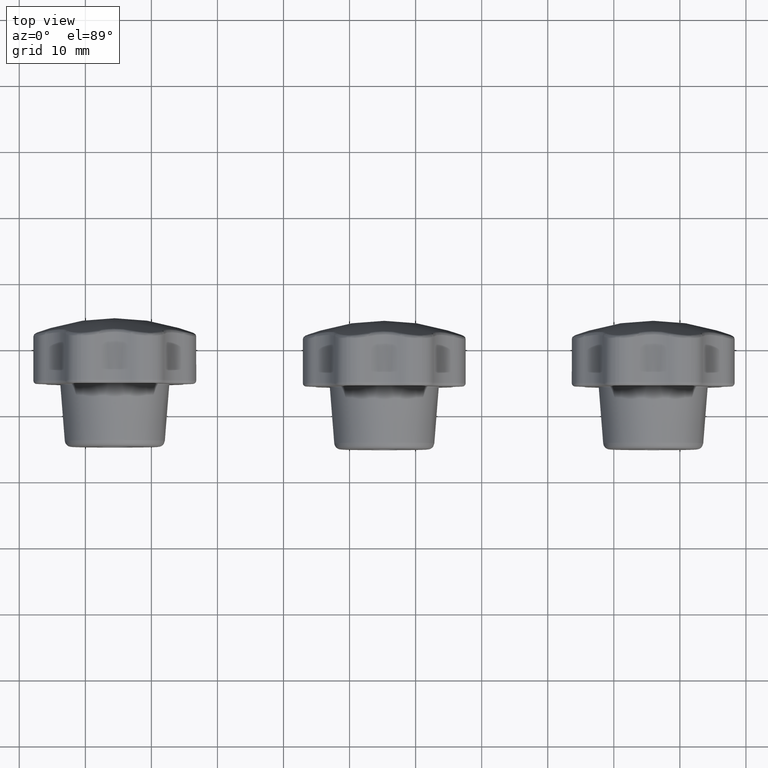
[diagram: clean part render]
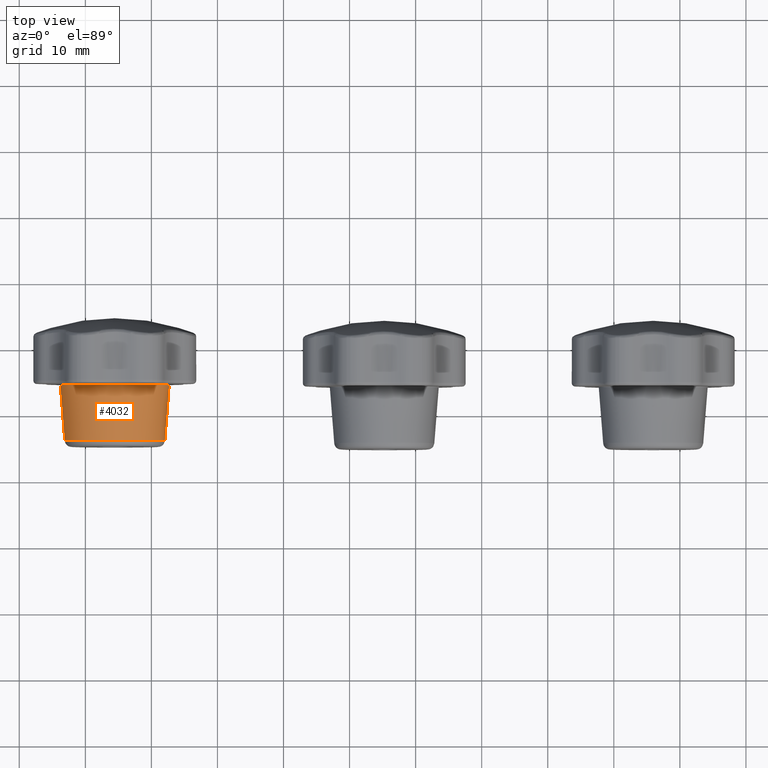
[diagram: same view with one face highlighted and labeled with its STEP entity id]
A machine part, top view. The second image highlights one B-rep face of the part: STEP entity #4032.
In plain terms, the highlighted conical surface has half-angle 4.514 deg.
Its self-contained STEP definition (entity closure, byte-faithful):
#527=FACE_BOUND('',#1180,.T.);
#888=FACE_OUTER_BOUND('',#1179,.T.);
#1179=EDGE_LOOP('',(#3741));
#1180=EDGE_LOOP('',(#3742));
#1580=CIRCLE('',#4644,8.23545319713821);
#1581=CIRCLE('',#4646,7.57273401430895);
#1934=VERTEX_POINT('',#8921);
#1935=VERTEX_POINT('',#8924);
#2539=EDGE_CURVE('',#1934,#1934,#1580,.T.);
#2540=EDGE_CURVE('',#1935,#1935,#1581,.T.);
#3741=ORIENTED_EDGE('',*,*,#2540,.F.);
#3742=ORIENTED_EDGE('',*,*,#2539,.F.);
#3760=CONICAL_SURFACE('',#4645,7.875,4.51398845800127);
#4032=ADVANCED_FACE('',(#888,#527),#3760,.T.);
#4644=AXIS2_PLACEMENT_3D('',#8922,#5947,#5948);
#4645=AXIS2_PLACEMENT_3D('',#8923,#5949,#5950);
#4646=AXIS2_PLACEMENT_3D('',#8925,#5951,#5952);
#5947=DIRECTION('center_axis',(0.,1.,0.));
#5948=DIRECTION('ref_axis',(1.,0.,0.));
#5949=DIRECTION('center_axis',(0.,1.,0.));
#5950=DIRECTION('ref_axis',(-1.,0.,0.));
#5951=DIRECTION('center_axis',(0.,-1.,0.));
#5952=DIRECTION('ref_axis',(1.,0.,0.));
#8921=CARTESIAN_POINT('',(-8.23545319713821,-0.184259502915997,-1.23259516440783E-31));
#8922=CARTESIAN_POINT('Origin',(0.,-0.184259502915997,-1.00855213974031E-15));
#8923=CARTESIAN_POINT('Origin',(0.,-4.75,0.));
#8924=CARTESIAN_POINT('',(-7.57273401430895,-8.57870248542001,-1.85478489428355E-15));
#8925=CARTESIAN_POINT('Origin',(0.,-8.57870248542001,-9.27392447141774E-16));